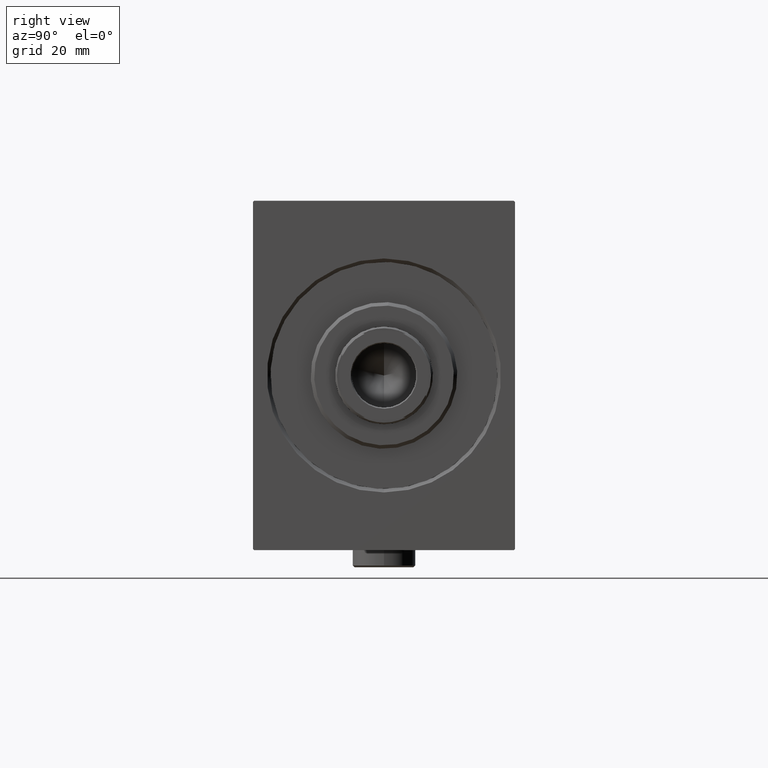
[diagram: clean part render]
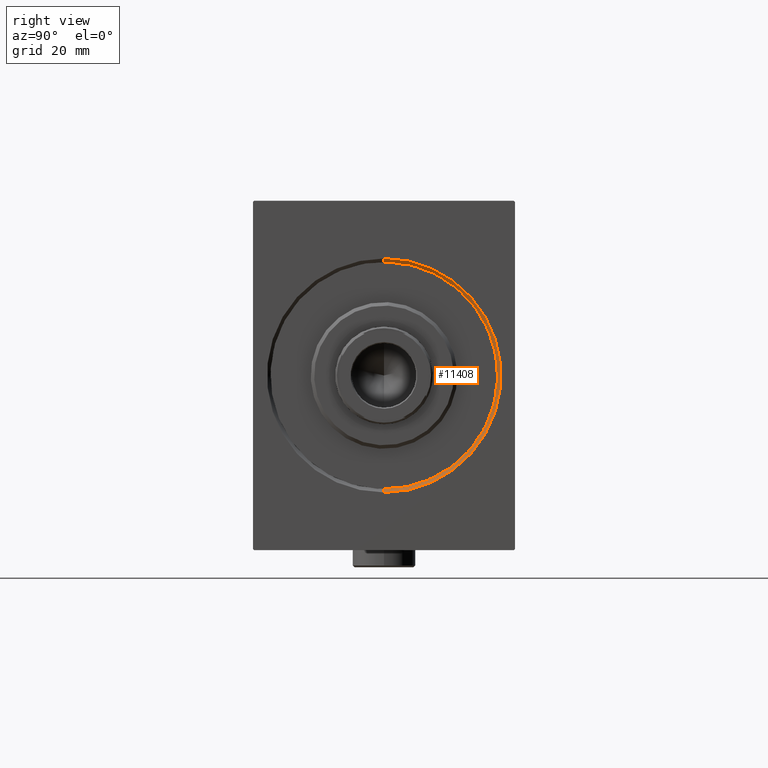
[diagram: same view with one face highlighted and labeled with its STEP entity id]
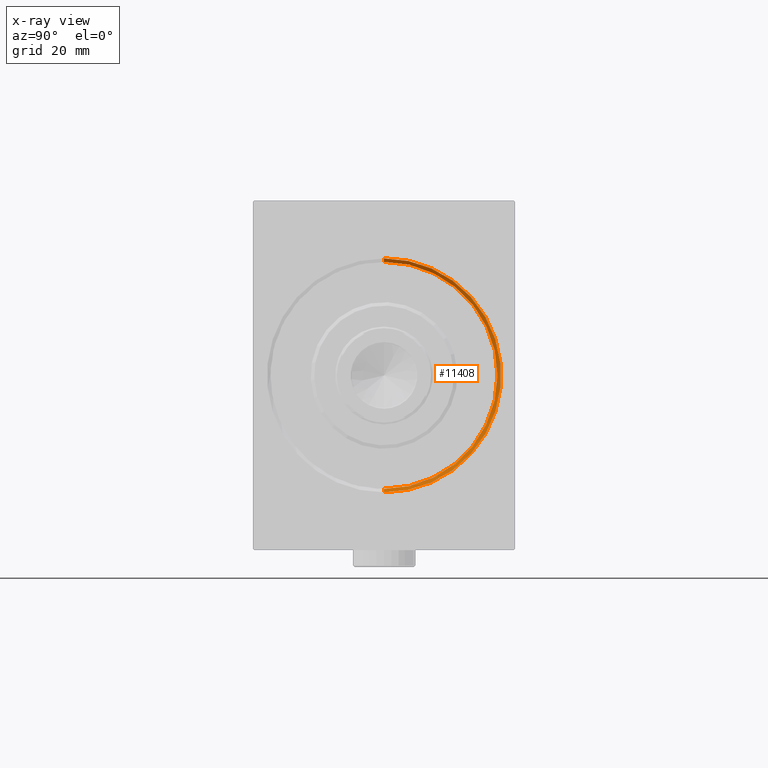
[diagram: x-ray of the same camera — body ghosted, the highlighted face saturated]
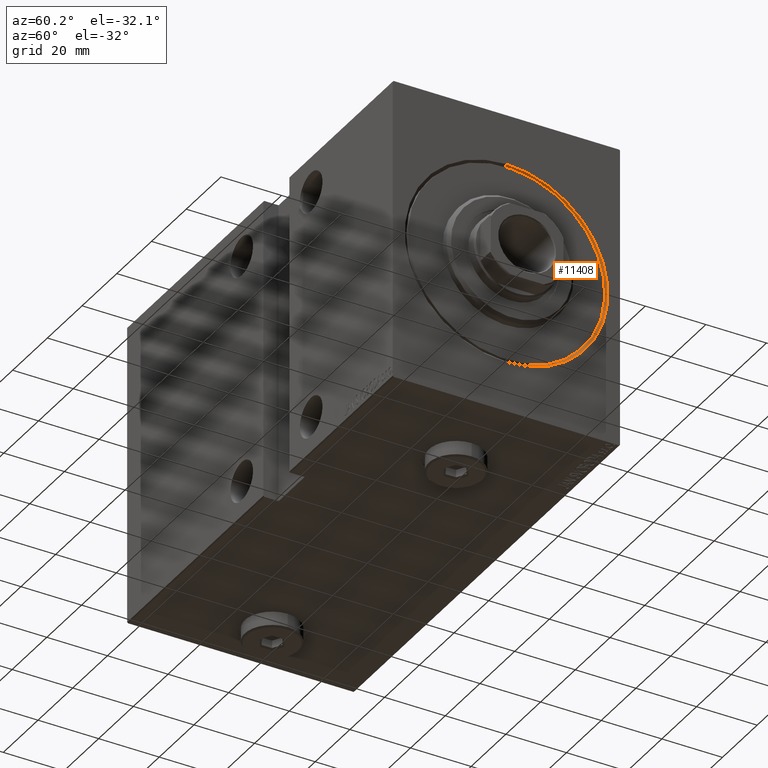
[diagram: same view with one face highlighted and labeled with its STEP entity id]
A machine part, right view. The second image highlights one B-rep face of the part: STEP entity #11408.
The next image is the same camera in x-ray: the body ghosted, the highlighted face saturated — about 0% of this face is hidden behind the body in this view.
A second angle (auxiliary view) of the same face is appended — the face is thin or edge-on in the first view.
In plain terms, the highlighted conical surface has half-angle 45 deg.
Its self-contained STEP definition (entity closure, byte-faithful):
#144 = EDGE_LOOP ( 'NONE', ( #16510, #6890, #26752, #31003 ) ) ;
#247 = EDGE_CURVE ( 'NONE', #32147, #7434, #18801, .T. ) ;
#915 = VECTOR ( 'NONE', #935, 1000.000000000000114 ) ;
#935 = DIRECTION ( 'NONE',  ( -0.7071067811865474617, 8.659560562354932858E-17, -0.7071067811865474617 ) ) ;
#1451 = CARTESIAN_POINT ( 'NONE',  ( 0.000000000000000000, 4.102566777143633774E-15, -33.50000000000000000 ) ) ;
#4944 = VECTOR ( 'NONE', #27600, 1000.000000000000114 ) ;
#5453 = DIRECTION ( 'NONE',  ( 1.000000000000000000, 0.000000000000000000, 0.000000000000000000 ) ) ;
#5996 = CARTESIAN_POINT ( 'NONE',  ( 1.000000000000000888, 3.980102097228898626E-15, -32.50000000000000000 ) ) ;
#6890 = ORIENTED_EDGE ( 'NONE', *, *, #20052, .T. ) ;
#6945 = VERTEX_POINT ( 'NONE', #7695 ) ;
#7434 = VERTEX_POINT ( 'NONE', #1451 ) ;
#7695 = CARTESIAN_POINT ( 'NONE',  ( 1.000000000000000888, 0.000000000000000000, 32.50000000000000000 ) ) ;
#11408 = ADVANCED_FACE ( 'NONE', ( #43874 ), #44146, .F. ) ;
#12644 = CARTESIAN_POINT ( 'NONE',  ( 0.000000000000000000, 0.000000000000000000, 0.000000000000000000 ) ) ;
#16510 = ORIENTED_EDGE ( 'NONE', *, *, #18282, .F. ) ;
#17344 = CIRCLE ( 'NONE', #43844, 32.50000000000000000 ) ;
#18282 = EDGE_CURVE ( 'NONE', #39269, #6945, #17344, .T. ) ;
#18801 = CIRCLE ( 'NONE', #35970, 33.50000000000000000 ) ;
#20052 = EDGE_CURVE ( 'NONE', #39269, #7434, #37731, .T. ) ;
#20549 = CARTESIAN_POINT ( 'NONE',  ( 1.000000000000000888, 0.000000000000000000, 0.000000000000000000 ) ) ;
#26509 = CARTESIAN_POINT ( 'NONE',  ( 0.000000000000000000, 0.000000000000000000, 33.50000000000000000 ) ) ;
#26701 = CARTESIAN_POINT ( 'NONE',  ( 1.000000000000000888, 0.000000000000000000, 0.000000000000000000 ) ) ;
#26752 = ORIENTED_EDGE ( 'NONE', *, *, #247, .F. ) ;
#27600 = DIRECTION ( 'NONE',  ( -0.7071067811865474617, 0.000000000000000000, 0.7071067811865474617 ) ) ;
#29853 = LINE ( 'NONE', #31405, #4944 ) ;
#30991 = CARTESIAN_POINT ( 'NONE',  ( 1.000000000000000888, 3.980102097228898626E-15, -32.50000000000000000 ) ) ;
#31003 = ORIENTED_EDGE ( 'NONE', *, *, #41353, .F. ) ;
#31405 = CARTESIAN_POINT ( 'NONE',  ( 1.000000000000000888, 0.000000000000000000, 32.50000000000000000 ) ) ;
#32147 = VERTEX_POINT ( 'NONE', #26509 ) ;
#33253 = DIRECTION ( 'NONE',  ( 0.000000000000000000, 0.000000000000000000, -1.000000000000000000 ) ) ;
#33776 = DIRECTION ( 'NONE',  ( 0.000000000000000000, 0.000000000000000000, 1.000000000000000000 ) ) ;
#35970 = AXIS2_PLACEMENT_3D ( 'NONE', #12644, #5453, #33253 ) ;
#37139 = DIRECTION ( 'NONE',  ( -1.000000000000000000, 0.000000000000000000, 0.000000000000000000 ) ) ;
#37731 = LINE ( 'NONE', #30991, #915 ) ;
#39269 = VERTEX_POINT ( 'NONE', #5996 ) ;
#39720 = DIRECTION ( 'NONE',  ( -1.000000000000000000, 0.000000000000000000, 0.000000000000000000 ) ) ;
#40386 = DIRECTION ( 'NONE',  ( 0.000000000000000000, 0.000000000000000000, -1.000000000000000000 ) ) ;
#40560 = AXIS2_PLACEMENT_3D ( 'NONE', #20549, #37139, #33776 ) ;
#41353 = EDGE_CURVE ( 'NONE', #6945, #32147, #29853, .T. ) ;
#43844 = AXIS2_PLACEMENT_3D ( 'NONE', #26701, #39720, #40386 ) ;
#43874 = FACE_OUTER_BOUND ( 'NONE', #144, .T. ) ;
#44146 = CONICAL_SURFACE ( 'NONE', #40560, 32.50000000000000000, 0.7853981633974482790 ) ;